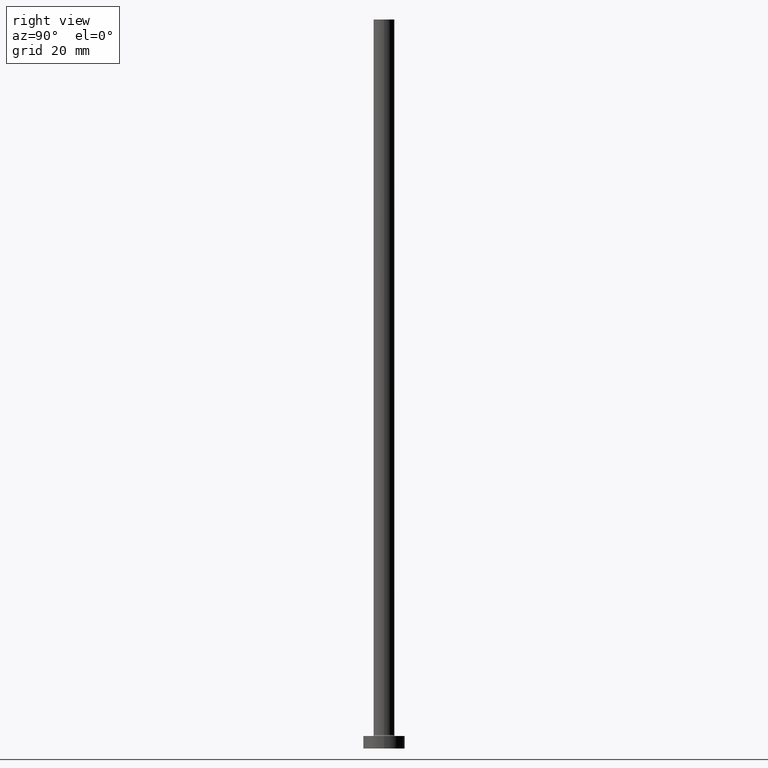
[diagram: clean part render]
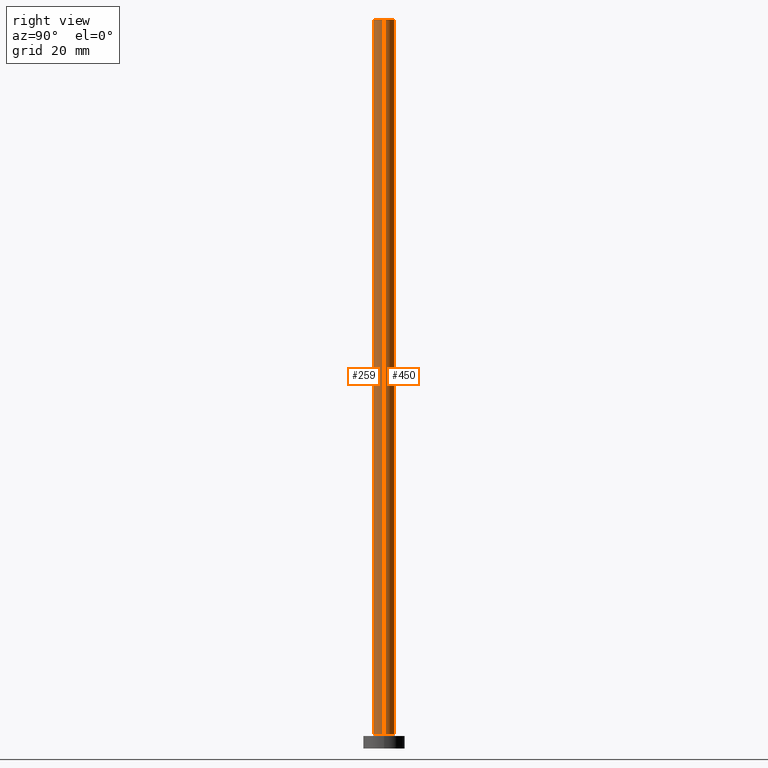
[diagram: same view with one multi-face feature highlighted, each face labeled with its STEP entity id]
A machine part, right view. The highlighted faces form ONE feature: a constant-radius fillet chain: 2 tangent blend faces with common blend radius 2.5 mm. The faces share edges in the B-rep.
Their STEP definitions:
[1] entity #450 (Cylinder):
#4 = ORIENTED_EDGE ( 'NONE', *, *, #7, .T. ) ;
#7 = EDGE_CURVE ( 'NONE', #239, #161, #316, .T. ) ;
#20 = DIRECTION ( 'NONE',  ( -0.000000000000000000, -0.000000000000000000, -1.000000000000000000 ) ) ;
#31 = CARTESIAN_POINT ( 'NONE',  ( -2.500000000000000000, 0.000000000000000000, 175.0000000000000000 ) ) ;
#45 = ORIENTED_EDGE ( 'NONE', *, *, #376, .F. ) ;
#54 = CARTESIAN_POINT ( 'NONE',  ( 2.500000000000000000, 3.061616997868383141E-16, 175.0000000000000000 ) ) ;
#87 = VERTEX_POINT ( 'NONE', #105 ) ;
#105 = CARTESIAN_POINT ( 'NONE',  ( -2.500000000000000000, 0.000000000000000000, 175.0000000000000000 ) ) ;
#108 = DIRECTION ( 'NONE',  ( -1.000000000000000000, 0.000000000000000000, 0.000000000000000000 ) ) ;
#109 = AXIS2_PLACEMENT_3D ( 'NONE', #356, #421, #258 ) ;
#111 = DIRECTION ( 'NONE',  ( -0.000000000000000000, -0.000000000000000000, -1.000000000000000000 ) ) ;
#122 = CIRCLE ( 'NONE', #359, 2.500000000000000000 ) ;
#140 = EDGE_LOOP ( 'NONE', ( #269, #4, #393, #45 ) ) ;
#157 = CARTESIAN_POINT ( 'NONE',  ( 2.500000000000000000, 3.061616997868383141E-16, 3.299999999999997158 ) ) ;
#159 = EDGE_CURVE ( 'NONE', #239, #87, #122, .T. ) ;
#161 = VERTEX_POINT ( 'NONE', #157 ) ;
#169 = CARTESIAN_POINT ( 'NONE',  ( -2.500000000000000000, 0.000000000000000000, 3.299999999999997158 ) ) ;
#172 = EDGE_CURVE ( 'NONE', #161, #209, #314, .T. ) ;
#209 = VERTEX_POINT ( 'NONE', #169 ) ;
#218 = CARTESIAN_POINT ( 'NONE',  ( 0.000000000000000000, 0.000000000000000000, 175.0000000000000000 ) ) ;
#220 = LINE ( 'NONE', #31, #391 ) ;
#239 = VERTEX_POINT ( 'NONE', #54 ) ;
#258 = DIRECTION ( 'NONE',  ( 1.000000000000000000, 0.000000000000000000, 0.000000000000000000 ) ) ;
#269 = ORIENTED_EDGE ( 'NONE', *, *, #159, .F. ) ;
#290 = FACE_OUTER_BOUND ( 'NONE', #140, .T. ) ;
#314 = CIRCLE ( 'NONE', #109, 2.500000000000000000 ) ;
#316 = LINE ( 'NONE', #415, #419 ) ;
#333 = AXIS2_PLACEMENT_3D ( 'NONE', #218, #423, #108 ) ;
#356 = CARTESIAN_POINT ( 'NONE',  ( 0.000000000000000000, 0.000000000000000000, 3.299999999999997158 ) ) ;
#359 = AXIS2_PLACEMENT_3D ( 'NONE', #396, #388, #434 ) ;
#376 = EDGE_CURVE ( 'NONE', #87, #209, #220, .T. ) ;
#385 = CYLINDRICAL_SURFACE ( 'NONE', #333, 2.500000000000000000 ) ;
#388 = DIRECTION ( 'NONE',  ( 0.000000000000000000, 0.000000000000000000, 1.000000000000000000 ) ) ;
#391 = VECTOR ( 'NONE', #111, 1000.000000000000000 ) ;
#393 = ORIENTED_EDGE ( 'NONE', *, *, #172, .T. ) ;
#396 = CARTESIAN_POINT ( 'NONE',  ( 0.000000000000000000, 0.000000000000000000, 175.0000000000000000 ) ) ;
#415 = CARTESIAN_POINT ( 'NONE',  ( 2.500000000000000000, 3.061616997868383141E-16, 175.0000000000000000 ) ) ;
#419 = VECTOR ( 'NONE', #20, 1000.000000000000000 ) ;
#421 = DIRECTION ( 'NONE',  ( 0.000000000000000000, 0.000000000000000000, 1.000000000000000000 ) ) ;
#423 = DIRECTION ( 'NONE',  ( -0.000000000000000000, -0.000000000000000000, -1.000000000000000000 ) ) ;
#434 = DIRECTION ( 'NONE',  ( 1.000000000000000000, 0.000000000000000000, 0.000000000000000000 ) ) ;
#450 = ADVANCED_FACE ( 'NONE', ( #290 ), #385, .T. ) ;
[2] entity #259 (Cylinder):
#7 = EDGE_CURVE ( 'NONE', #239, #161, #316, .T. ) ;
#19 = DIRECTION ( 'NONE',  ( -0.000000000000000000, -0.000000000000000000, -1.000000000000000000 ) ) ;
#20 = DIRECTION ( 'NONE',  ( -0.000000000000000000, -0.000000000000000000, -1.000000000000000000 ) ) ;
#23 = ORIENTED_EDGE ( 'NONE', *, *, #376, .T. ) ;
#31 = CARTESIAN_POINT ( 'NONE',  ( -2.500000000000000000, 0.000000000000000000, 175.0000000000000000 ) ) ;
#48 = CIRCLE ( 'NONE', #135, 2.500000000000000000 ) ;
#54 = CARTESIAN_POINT ( 'NONE',  ( 2.500000000000000000, 3.061616997868383141E-16, 175.0000000000000000 ) ) ;
#59 = DIRECTION ( 'NONE',  ( 1.000000000000000000, 0.000000000000000000, 0.000000000000000000 ) ) ;
#87 = VERTEX_POINT ( 'NONE', #105 ) ;
#92 = CARTESIAN_POINT ( 'NONE',  ( 0.000000000000000000, 0.000000000000000000, 175.0000000000000000 ) ) ;
#105 = CARTESIAN_POINT ( 'NONE',  ( -2.500000000000000000, 0.000000000000000000, 175.0000000000000000 ) ) ;
#107 = ORIENTED_EDGE ( 'NONE', *, *, #456, .T. ) ;
#111 = DIRECTION ( 'NONE',  ( -0.000000000000000000, -0.000000000000000000, -1.000000000000000000 ) ) ;
#127 = AXIS2_PLACEMENT_3D ( 'NONE', #92, #379, #59 ) ;
#135 = AXIS2_PLACEMENT_3D ( 'NONE', #390, #223, #364 ) ;
#149 = CIRCLE ( 'NONE', #127, 2.500000000000000000 ) ;
#157 = CARTESIAN_POINT ( 'NONE',  ( 2.500000000000000000, 3.061616997868383141E-16, 3.299999999999997158 ) ) ;
#161 = VERTEX_POINT ( 'NONE', #157 ) ;
#169 = CARTESIAN_POINT ( 'NONE',  ( -2.500000000000000000, 0.000000000000000000, 3.299999999999997158 ) ) ;
#199 = CARTESIAN_POINT ( 'NONE',  ( 0.000000000000000000, 0.000000000000000000, 175.0000000000000000 ) ) ;
#202 = EDGE_LOOP ( 'NONE', ( #439, #243, #23, #107 ) ) ;
#209 = VERTEX_POINT ( 'NONE', #169 ) ;
#220 = LINE ( 'NONE', #31, #391 ) ;
#223 = DIRECTION ( 'NONE',  ( 0.000000000000000000, 0.000000000000000000, 1.000000000000000000 ) ) ;
#239 = VERTEX_POINT ( 'NONE', #54 ) ;
#242 = CYLINDRICAL_SURFACE ( 'NONE', #265, 2.500000000000000000 ) ;
#243 = ORIENTED_EDGE ( 'NONE', *, *, #332, .F. ) ;
#259 = ADVANCED_FACE ( 'NONE', ( #279 ), #242, .T. ) ;
#265 = AXIS2_PLACEMENT_3D ( 'NONE', #199, #19, #343 ) ;
#279 = FACE_OUTER_BOUND ( 'NONE', #202, .T. ) ;
#316 = LINE ( 'NONE', #415, #419 ) ;
#332 = EDGE_CURVE ( 'NONE', #87, #239, #149, .T. ) ;
#343 = DIRECTION ( 'NONE',  ( -1.000000000000000000, 0.000000000000000000, 0.000000000000000000 ) ) ;
#364 = DIRECTION ( 'NONE',  ( 1.000000000000000000, 0.000000000000000000, 0.000000000000000000 ) ) ;
#376 = EDGE_CURVE ( 'NONE', #87, #209, #220, .T. ) ;
#379 = DIRECTION ( 'NONE',  ( 0.000000000000000000, 0.000000000000000000, 1.000000000000000000 ) ) ;
#390 = CARTESIAN_POINT ( 'NONE',  ( 0.000000000000000000, 0.000000000000000000, 3.299999999999997158 ) ) ;
#391 = VECTOR ( 'NONE', #111, 1000.000000000000000 ) ;
#415 = CARTESIAN_POINT ( 'NONE',  ( 2.500000000000000000, 3.061616997868383141E-16, 175.0000000000000000 ) ) ;
#419 = VECTOR ( 'NONE', #20, 1000.000000000000000 ) ;
#439 = ORIENTED_EDGE ( 'NONE', *, *, #7, .F. ) ;
#456 = EDGE_CURVE ( 'NONE', #209, #161, #48, .T. ) ;